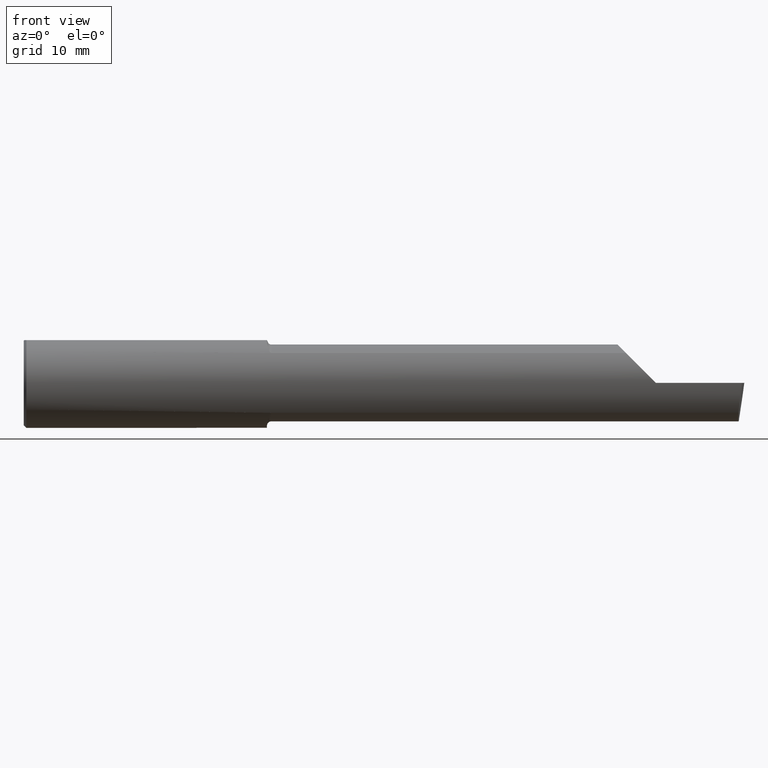
[diagram: clean part render]
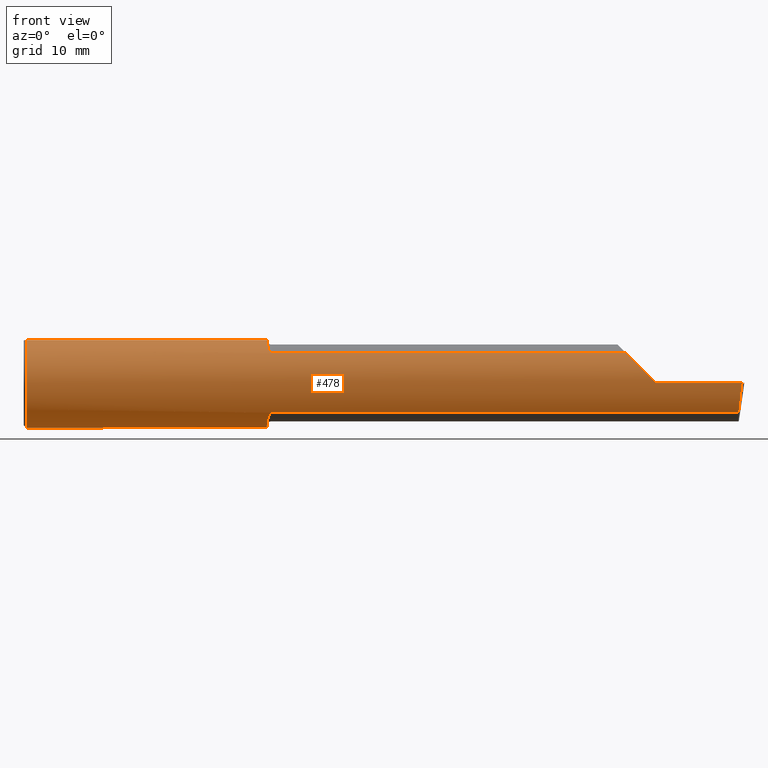
[diagram: same view with one face highlighted and labeled with its STEP entity id]
A machine part, front view. The second image highlights one B-rep face of the part: STEP entity #478.
In plain terms, the highlighted cylindrical surface (partial cylindrical patch) has radius 6.3462 mm, axis along (-1, -0, -0).
Its self-contained STEP definition (entity closure, byte-faithful):
#2 = ORIENTED_EDGE ( 'NONE', *, *, #128, .F. ) ;
#5 = CARTESIAN_POINT ( 'NONE',  ( 1.357343635746627530, -0.1582230848692706138, 0.1936715022401943043 ) ) ;
#21 = CARTESIAN_POINT ( 'NONE',  ( 1.365875558094659992, -0.1799506819598047647, -0.1733486322212172137 ) ) ;
#24 = CIRCLE ( 'NONE', #391, 0.2498499999999999888 ) ;
#26 = EDGE_CURVE ( 'NONE', #619, #709, #82, .T. ) ;
#30 = CARTESIAN_POINT ( 'NONE',  ( 0.01499999999998191669, -0.07650098038590480432, 0.2378500000000000059 ) ) ;
#36 = CARTESIAN_POINT ( 'NONE',  ( 3.344079160038588849, -0.1868028301886788811, 0.1659208399614091889 ) ) ;
#39 = CARTESIAN_POINT ( 'NONE',  ( 1.367016733372314219, -0.1817333077058777002, -0.1714754572696056134 ) ) ;
#40 = DIRECTION ( 'NONE',  ( -1.000000000000000000, -0.0000000000000000000, -0.0000000000000000000 ) ) ;
#41 = DIRECTION ( 'NONE',  ( -1.000000000000000000, -0.0000000000000000000, -0.0000000000000000000 ) ) ;
#48 = EDGE_LOOP ( 'NONE', ( #677, #226, #568, #738, #364, #679, #366, #264, #114, #455, #528, #2, #168 ) ) ;
#53 = CYLINDRICAL_SURFACE ( 'NONE', #404, 0.2498499999999999888 ) ;
#54 = CARTESIAN_POINT ( 'NONE',  ( 1.370144309637441271, -0.1849788583324340763, 0.1679547276881059592 ) ) ;
#64 = DIRECTION ( 'NONE',  ( 0.0000000000000000000, 0.0000000000000000000, 1.000000000000000000 ) ) ;
#76 = FACE_OUTER_BOUND ( 'NONE', #48, .T. ) ;
#77 =( BOUNDED_CURVE ( )  B_SPLINE_CURVE ( 3, ( #392, #281, #630, #36 ),
 .UNSPECIFIED., .F., .F. ) 
 B_SPLINE_CURVE_WITH_KNOTS ( ( 4, 4 ),
 ( 4.712388980384687898, 5.438654041019574059 ),
 .UNSPECIFIED. ) 
 CURVE ( )  GEOMETRIC_REPRESENTATION_ITEM ( )  RATIONAL_B_SPLINE_CURVE ( ( 1.000000000000000000, 0.9565258159410992000, 0.9565258159410992000, 1.000000000000000000 ) ) 
 REPRESENTATION_ITEM ( '' )  );
#79 = CARTESIAN_POINT ( 'NONE',  ( 0.0000000000000000000, -0.07650098038587477278, 0.2378500000000000059 ) ) ;
#80 = CARTESIAN_POINT ( 'NONE',  ( 1.350000000000000089, 0.07650098038587482829, 0.2378500000000000059 ) ) ;
#82 = LINE ( 'NONE', #79, #694 ) ;
#93 = CARTESIAN_POINT ( 'NONE',  ( 1.369285582744839580, -0.1841881072713817125, -0.1688230283719341918 ) ) ;
#103 = B_SPLINE_CURVE_WITH_KNOTS ( 'NONE', 3,
 ( #222, #446, #216, #156, #93, #39, #21, #569, #625, #635, #742, #727, #615, #508 ),
 .UNSPECIFIED., .F., .F.,
 ( 4, 2, 2, 2, 2, 2, 4 ),
 ( 1.967619685287234863E-07, 0.0001090840123077923190, 0.0002179712626470558959, 0.0004357457633255831038, 0.0008712947646826356765, 0.001742392767396749604, 0.003484588772824973556 ),
 .UNSPECIFIED. ) ;
#107 = CARTESIAN_POINT ( 'NONE',  ( 3.509999999999999787, -0.2498499999999999610, -6.245698675651499853E-17 ) ) ;
#114 = ORIENTED_EDGE ( 'NONE', *, *, #209, .F. ) ;
#119 =( BOUNDED_CURVE ( )  B_SPLINE_CURVE ( 3, ( #275, #210, #724, #767 ),
 .UNSPECIFIED., .F., .F. ) 
 B_SPLINE_CURVE_WITH_KNOTS ( ( 4, 4 ),
 ( 0.6344818218798813358, 1.360746882514760836 ),
 .UNSPECIFIED. ) 
 CURVE ( )  GEOMETRIC_REPRESENTATION_ITEM ( )  RATIONAL_B_SPLINE_CURVE ( ( 1.000000000000000000, 0.9565258159410998662, 0.9565258159410998662, 1.000000000000000000 ) ) 
 REPRESENTATION_ITEM ( '' )  );
#120 = VERTEX_POINT ( 'NONE', #559 ) ;
#128 = EDGE_CURVE ( 'NONE', #699, #641, #24, .T. ) ;
#140 = LINE ( 'NONE', #236, #594 ) ;
#145 = DIRECTION ( 'NONE',  ( 1.000000000000000000, 0.0000000000000000000, 0.0000000000000000000 ) ) ;
#156 = CARTESIAN_POINT ( 'NONE',  ( 1.370138573936399817, -0.1849738682364336917, -0.1679602226613243765 ) ) ;
#162 = B_SPLINE_CURVE_WITH_KNOTS ( 'NONE', 3,
 ( #244, #169, #464, #550, #425, #191, #5, #749, #298, #371, #315, #712, #54, #195, #488, #427 ),
 .UNSPECIFIED., .F., .F.,
 ( 4, 2, 2, 2, 2, 2, 2, 4 ),
 ( 0.0001034694911878371434, 0.0009591263138367668280, 0.001814783136485696377, 0.002670439959134626035, 0.003098268370459088695, 0.003312182576121323278, 0.003419139678952434931, 0.003526096781783545717 ),
 .UNSPECIFIED. ) ;
#164 = EDGE_CURVE ( 'NONE', #485, #229, #119, .T. ) ;
#168 = ORIENTED_EDGE ( 'NONE', *, *, #372, .F. ) ;
#169 = CARTESIAN_POINT ( 'NONE',  ( 1.349999999999999867, -0.09104204635388273015, 0.2329453649474652333 ) ) ;
#176 = CARTESIAN_POINT ( 'NONE',  ( 0.0000000000000000000, 0.07650098038587481442, 0.2378500000000000059 ) ) ;
#178 = CARTESIAN_POINT ( 'NONE',  ( 1.375000000000000000, -0.1868028301886802411, -0.1659208399614077178 ) ) ;
#180 = CARTESIAN_POINT ( 'NONE',  ( 0.01499999999999999771, 0.07650098038587481442, 0.2378500000000000059 ) ) ;
#181 = AXIS2_PLACEMENT_3D ( 'NONE', #457, #40, #228 ) ;
#191 = CARTESIAN_POINT ( 'NONE',  ( 1.355553274544309295, -0.1495649063853957961, 0.2004446339470377925 ) ) ;
#195 = CARTESIAN_POINT ( 'NONE',  ( 1.372243150415551449, -0.1862809296394754566, 0.1665094106511980643 ) ) ;
#204 = CARTESIAN_POINT ( 'NONE',  ( 1.350000000000000089, -0.07650098038590487370, 0.2378500000000000059 ) ) ;
#205 = DIRECTION ( 'NONE',  ( 1.000000000000000000, 0.0000000000000000000, 0.0000000000000000000 ) ) ;
#209 = EDGE_CURVE ( 'NONE', #757, #709, #356, .T. ) ;
#210 = CARTESIAN_POINT ( 'NONE',  ( 3.973097331270538213, -0.2278791102234775934, -0.1196748990301323284 ) ) ;
#211 = CARTESIAN_POINT ( 'NONE',  ( 1.350000000000000089, -0.08036415094339748044, -0.2365726648265746579 ) ) ;
#216 = CARTESIAN_POINT ( 'NONE',  ( 1.372232603162240716, -0.1862758070845882685, -0.1665151405181416744 ) ) ;
#222 = CARTESIAN_POINT ( 'NONE',  ( 1.375000000000000000, -0.1868028301886802411, -0.1659208399614077178 ) ) ;
#226 = ORIENTED_EDGE ( 'NONE', *, *, #164, .T. ) ;
#228 = DIRECTION ( 'NONE',  ( 0.0000000000000000000, 0.0000000000000000000, 1.000000000000000000 ) ) ;
#229 = VERTEX_POINT ( 'NONE', #348 ) ;
#236 = CARTESIAN_POINT ( 'NONE',  ( 2.459999999999999964, -0.1868028301886797693, 0.1659208399614083285 ) ) ;
#244 = CARTESIAN_POINT ( 'NONE',  ( 1.350000000000000089, -0.08036415094339748044, 0.2365726648265746579 ) ) ;
#264 = ORIENTED_EDGE ( 'NONE', *, *, #26, .T. ) ;
#275 = CARTESIAN_POINT ( 'NONE',  ( 3.968492717492760669, -0.1868028301886797693, -0.1659208399614083285 ) ) ;
#281 = CARTESIAN_POINT ( 'NONE',  ( 3.448145753305723815, -0.2498500000000001275, 0.06185424669427486838 ) ) ;
#285 = CARTESIAN_POINT ( 'NONE',  ( 0.01499999999999999771, 0.0000000000000000000, -0.2498499999999999888 ) ) ;
#298 = CARTESIAN_POINT ( 'NONE',  ( 1.362758562425230080, -0.1743135686468875178, 0.1790760091940033216 ) ) ;
#307 = VECTOR ( 'NONE', #650, 39.37007874015748143 ) ;
#313 = CARTESIAN_POINT ( 'NONE',  ( 0.0000000000000000000, 0.0000000000000000000, 0.0000000000000000000 ) ) ;
#315 = CARTESIAN_POINT ( 'NONE',  ( 1.367018584423771888, -0.1817363555988623924, 0.1714722504633794664 ) ) ;
#319 = CARTESIAN_POINT ( 'NONE',  ( 3.968492717492760669, -0.1868028301886797693, -0.1659208399614083285 ) ) ;
#328 = VERTEX_POINT ( 'NONE', #107 ) ;
#331 = EDGE_CURVE ( 'NONE', #229, #328, #604, .T. ) ;
#332 = EDGE_CURVE ( 'NONE', #603, #641, #758, .T. ) ;
#348 = CARTESIAN_POINT ( 'NONE',  ( 3.987221270274236229, -0.2498499999999999888, -1.346590301211604612E-16 ) ) ;
#356 = CIRCLE ( 'NONE', #181, 0.2498499999999999888 ) ;
#357 = CARTESIAN_POINT ( 'NONE',  ( 7.089685198749692867E-32, -0.2498499999999999610, 4.685946446163635703E-16 ) ) ;
#364 = ORIENTED_EDGE ( 'NONE', *, *, #599, .F. ) ;
#366 = ORIENTED_EDGE ( 'NONE', *, *, #674, .F. ) ;
#371 = CARTESIAN_POINT ( 'NONE',  ( 1.365857071685141477, -0.1799228808997987428, 0.1733778622677440429 ) ) ;
#372 = EDGE_CURVE ( 'NONE', #545, #699, #103, .T. ) ;
#382 = DIRECTION ( 'NONE',  ( -1.000000000000000000, -0.0000000000000000000, -0.0000000000000000000 ) ) ;
#391 = AXIS2_PLACEMENT_3D ( 'NONE', #557, #205, #474 ) ;
#392 = CARTESIAN_POINT ( 'NONE',  ( 3.509999999999999787, -0.2498499999999999610, -6.245698675651499853E-17 ) ) ;
#393 = CARTESIAN_POINT ( 'NONE',  ( 1.350000000000000089, -0.08036415094339748044, 0.2365726648265746579 ) ) ;
#400 = CARTESIAN_POINT ( 'NONE',  ( 2.459999999999999964, -0.1868028301886797693, -0.1659208399614083285 ) ) ;
#403 = VERTEX_POINT ( 'NONE', #393 ) ;
#404 = AXIS2_PLACEMENT_3D ( 'NONE', #313, #412, #64 ) ;
#412 = DIRECTION ( 'NONE',  ( -1.000000000000000000, -0.0000000000000000000, -0.0000000000000000000 ) ) ;
#425 = CARTESIAN_POINT ( 'NONE',  ( 1.352700302592142911, -0.1312404656039935225, 0.2128935242986059184 ) ) ;
#427 = CARTESIAN_POINT ( 'NONE',  ( 1.375000000000000000, -0.1868028301886801024, 0.1659208399614077734 ) ) ;
#438 = CIRCLE ( 'NONE', #634, 0.2498499999999999888 ) ;
#442 = DIRECTION ( 'NONE',  ( -1.000000000000000000, -0.0000000000000000000, -0.0000000000000000000 ) ) ;
#443 = EDGE_CURVE ( 'NONE', #328, #751, #77, .T. ) ;
#446 = CARTESIAN_POINT ( 'NONE',  ( 1.373547768521294010, -0.1868028301886802689, -0.1659208399614078566 ) ) ;
#455 = ORIENTED_EDGE ( 'NONE', *, *, #638, .F. ) ;
#457 = CARTESIAN_POINT ( 'NONE',  ( 0.01499999999999999771, 0.0000000000000000000, 0.0000000000000000000 ) ) ;
#464 = CARTESIAN_POINT ( 'NONE',  ( 1.350332084145229761, -0.1014027185340456438, 0.2286231260779308383 ) ) ;
#474 = DIRECTION ( 'NONE',  ( 0.0000000000000000000, 0.0000000000000000000, -1.000000000000000000 ) ) ;
#478 = ADVANCED_FACE ( 'NONE', ( #76 ), #53, .T. ) ;
#484 = LINE ( 'NONE', #400, #501 ) ;
#485 = VERTEX_POINT ( 'NONE', #319 ) ;
#488 = CARTESIAN_POINT ( 'NONE',  ( 1.373548866468135676, -0.1868028301907326827, 0.1659208399590971772 ) ) ;
#493 = DIRECTION ( 'NONE',  ( 0.0000000000000000000, 0.0000000000000000000, 1.000000000000000000 ) ) ;
#498 = CARTESIAN_POINT ( 'NONE',  ( 1.350000000000000089, 0.0000000000000000000, 0.0000000000000000000 ) ) ;
#501 = VECTOR ( 'NONE', #41, 39.37007874015748143 ) ;
#508 = CARTESIAN_POINT ( 'NONE',  ( 1.350000000000000089, -0.08036415094339748044, -0.2365726648265746579 ) ) ;
#528 = ORIENTED_EDGE ( 'NONE', *, *, #332, .T. ) ;
#532 = DIRECTION ( 'NONE',  ( -1.000000000000000000, -0.0000000000000000000, -0.0000000000000000000 ) ) ;
#545 = VERTEX_POINT ( 'NONE', #178 ) ;
#550 = CARTESIAN_POINT ( 'NONE',  ( 1.351680550596499497, -0.1214972057705739350, 0.2186080375779516916 ) ) ;
#554 = CARTESIAN_POINT ( 'NONE',  ( 0.01499999999999999771, 0.0000000000000000000, 0.0000000000000000000 ) ) ;
#557 = CARTESIAN_POINT ( 'NONE',  ( 1.350000000000000089, 0.0000000000000000000, 0.0000000000000000000 ) ) ;
#559 = CARTESIAN_POINT ( 'NONE',  ( 1.375000000000000000, -0.1868028301886801024, 0.1659208399614077734 ) ) ;
#561 = DIRECTION ( 'NONE',  ( 0.0000000000000000000, 0.0000000000000000000, -1.000000000000000000 ) ) ;
#562 = EDGE_CURVE ( 'NONE', #403, #120, #162, .T. ) ;
#566 = CARTESIAN_POINT ( 'NONE',  ( 3.344079160038588849, -0.1868028301886788811, 0.1659208399614091889 ) ) ;
#568 = ORIENTED_EDGE ( 'NONE', *, *, #331, .T. ) ;
#569 = CARTESIAN_POINT ( 'NONE',  ( 1.362797058507745129, -0.1743943839926595518, -0.1789958554125690160 ) ) ;
#594 = VECTOR ( 'NONE', #696, 39.37007874015748143 ) ;
#599 = EDGE_CURVE ( 'NONE', #120, #751, #140, .T. ) ;
#603 = VERTEX_POINT ( 'NONE', #180 ) ;
#604 = LINE ( 'NONE', #357, #741 ) ;
#615 = CARTESIAN_POINT ( 'NONE',  ( 1.349999999999989653, -0.1016924291521898588, -0.2293274111511736935 ) ) ;
#619 = VERTEX_POINT ( 'NONE', #204 ) ;
#625 = CARTESIAN_POINT ( 'NONE',  ( 1.361285743882607813, -0.1704402150608124722, -0.1827701868778688621 ) ) ;
#630 = CARTESIAN_POINT ( 'NONE',  ( 3.390325100969866501, -0.2278791102234774546, 0.1196748990301328558 ) ) ;
#634 = AXIS2_PLACEMENT_3D ( 'NONE', #554, #442, #493 ) ;
#635 = CARTESIAN_POINT ( 'NONE',  ( 1.357341173198633788, -0.1582250006961568589, -0.1936724403215119572 ) ) ;
#638 = EDGE_CURVE ( 'NONE', #603, #757, #438, .T. ) ;
#641 = VERTEX_POINT ( 'NONE', #80 ) ;
#650 = DIRECTION ( 'NONE',  ( 1.000000000000000000, 0.0000000000000000000, 0.0000000000000000000 ) ) ;
#674 = EDGE_CURVE ( 'NONE', #619, #403, #711, .T. ) ;
#677 = ORIENTED_EDGE ( 'NONE', *, *, #768, .F. ) ;
#679 = ORIENTED_EDGE ( 'NONE', *, *, #562, .F. ) ;
#694 = VECTOR ( 'NONE', #382, 39.37007874015748143 ) ;
#696 = DIRECTION ( 'NONE',  ( 1.000000000000000000, 0.0000000000000000000, 0.0000000000000000000 ) ) ;
#699 = VERTEX_POINT ( 'NONE', #211 ) ;
#706 = AXIS2_PLACEMENT_3D ( 'NONE', #498, #145, #561 ) ;
#709 = VERTEX_POINT ( 'NONE', #30 ) ;
#711 = CIRCLE ( 'NONE', #706, 0.2498499999999999888 ) ;
#712 = CARTESIAN_POINT ( 'NONE',  ( 1.369290397284158134, -0.1841927918507057782, 0.1688179232533547625 ) ) ;
#724 = CARTESIAN_POINT ( 'NONE',  ( 3.979623920331823328, -0.2498499999999999610, -0.06185424669427484756 ) ) ;
#727 = CARTESIAN_POINT ( 'NONE',  ( 1.351227564404961168, -0.1217005943024305620, -0.2193523119135130928 ) ) ;
#738 = ORIENTED_EDGE ( 'NONE', *, *, #443, .T. ) ;
#741 = VECTOR ( 'NONE', #532, 39.37007874015748143 ) ;
#742 = CARTESIAN_POINT ( 'NONE',  ( 1.355537042546467008, -0.1495003888704995454, -0.2004994225712667943 ) ) ;
#749 = CARTESIAN_POINT ( 'NONE',  ( 1.361268146151109582, -0.1703904609315287921, 0.1828159088808237187 ) ) ;
#751 = VERTEX_POINT ( 'NONE', #566 ) ;
#757 = VERTEX_POINT ( 'NONE', #285 ) ;
#758 = LINE ( 'NONE', #176, #307 ) ;
#767 = CARTESIAN_POINT ( 'NONE',  ( 3.987221270274236229, -0.2498499999999999888, -1.346590301211604612E-16 ) ) ;
#768 = EDGE_CURVE ( 'NONE', #485, #545, #484, .T. ) ;